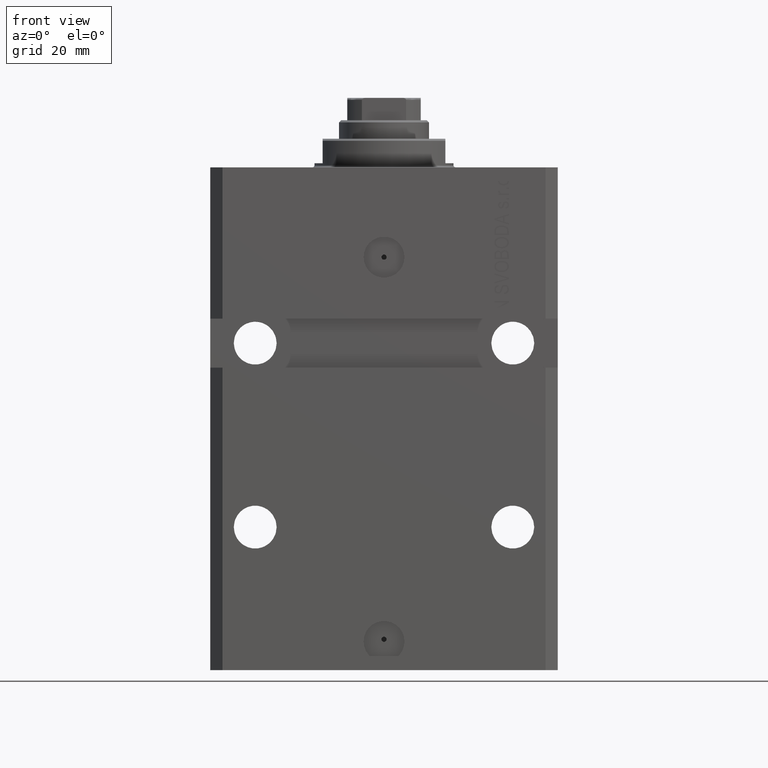
[diagram: clean part render]
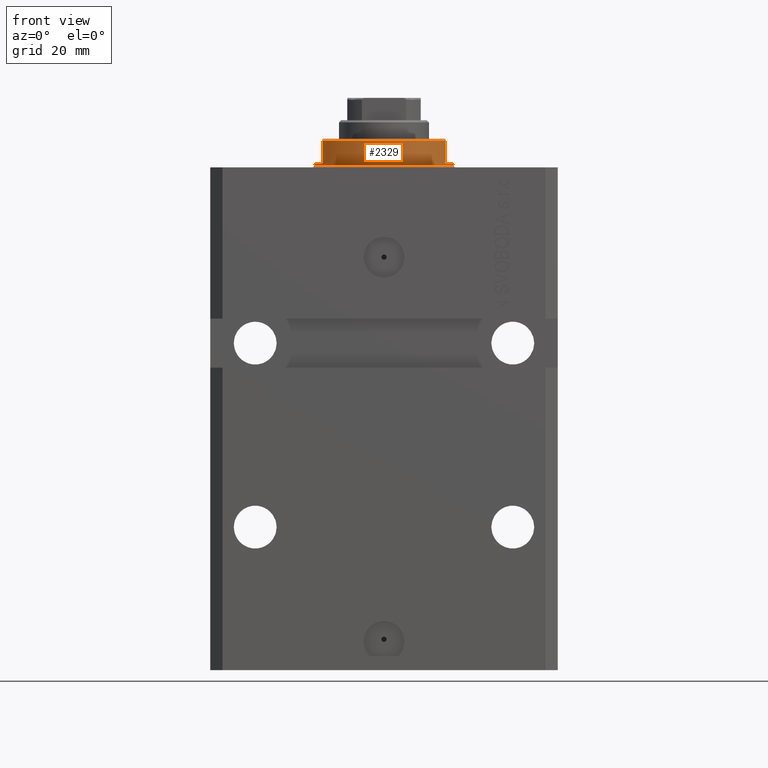
[diagram: same view with one face highlighted and labeled with its STEP entity id]
A machine part, front view. The second image highlights one B-rep face of the part: STEP entity #2329.
In plain terms, the highlighted cylindrical surface (partial cylindrical patch) has radius 17 mm, axis along (0, 0, -1).
Its self-contained STEP definition (entity closure, byte-faithful):
#260 = FACE_OUTER_BOUND ( 'NONE', #9491, .T. ) ;
#319 = EDGE_CURVE ( 'NONE', #7398, #27539, #11488, .T. ) ;
#559 = AXIS2_PLACEMENT_3D ( 'NONE', #21976, #14205, #33412 ) ;
#2329 = ADVANCED_FACE ( 'NONE', ( #260 ), #11448, .T. ) ;
#3823 = VERTEX_POINT ( 'NONE', #27311 ) ;
#4145 = CARTESIAN_POINT ( 'NONE',  ( 0.000000000000000000, 0.000000000000000000, -7.000000000000000000 ) ) ;
#4701 = EDGE_CURVE ( 'NONE', #7398, #17722, #18335, .T. ) ;
#4749 = ORIENTED_EDGE ( 'NONE', *, *, #41047, .F. ) ;
#7398 = VERTEX_POINT ( 'NONE', #14790 ) ;
#7901 = CARTESIAN_POINT ( 'NONE',  ( 17.00000000000000000, 0.000000000000000000, -0.4999999999999995559 ) ) ;
#8441 = CIRCLE ( 'NONE', #9199, 17.00000000000000000 ) ;
#8793 = LINE ( 'NONE', #46484, #19513 ) ;
#9199 = AXIS2_PLACEMENT_3D ( 'NONE', #34443, #12781, #23015 ) ;
#9491 = EDGE_LOOP ( 'NONE', ( #4749, #17702, #17759, #46613, #27384, #38736, #11511, #19768 ) ) ;
#9946 = EDGE_CURVE ( 'NONE', #12599, #25943, #8441, .T. ) ;
#11448 = CYLINDRICAL_SURFACE ( 'NONE', #41584, 17.00000000000000000 ) ;
#11488 = LINE ( 'NONE', #22434, #39970 ) ;
#11511 = ORIENTED_EDGE ( 'NONE', *, *, #319, .T. ) ;
#12599 = VERTEX_POINT ( 'NONE', #15156 ) ;
#12781 = DIRECTION ( 'NONE',  ( 0.000000000000000000, 0.000000000000000000, 1.000000000000000000 ) ) ;
#13104 = CARTESIAN_POINT ( 'NONE',  ( -17.00000000000000000, 2.081899558550500280E-15, -7.000000000000000000 ) ) ;
#13728 = LINE ( 'NONE', #25390, #35654 ) ;
#14205 = DIRECTION ( 'NONE',  ( 0.000000000000000000, 0.000000000000000000, -1.000000000000000000 ) ) ;
#14699 = DIRECTION ( 'NONE',  ( 0.000000000000000000, 0.000000000000000000, -1.000000000000000000 ) ) ;
#14790 = CARTESIAN_POINT ( 'NONE',  ( 17.00000000000000000, 0.000000000000000000, -1.000000000000000000 ) ) ;
#15114 = AXIS2_PLACEMENT_3D ( 'NONE', #33504, #44939, #26463 ) ;
#15156 = CARTESIAN_POINT ( 'NONE',  ( -15.00000000000000000, -8.000000000000001776, -6.500000000000014211 ) ) ;
#15298 = CARTESIAN_POINT ( 'NONE',  ( 14.99999999999999645, -8.000000000000003553, -1.000000000000000000 ) ) ;
#15522 = EDGE_CURVE ( 'NONE', #3823, #12599, #13728, .T. ) ;
#17702 = ORIENTED_EDGE ( 'NONE', *, *, #32054, .F. ) ;
#17722 = VERTEX_POINT ( 'NONE', #15298 ) ;
#17759 = ORIENTED_EDGE ( 'NONE', *, *, #15522, .T. ) ;
#18221 = CARTESIAN_POINT ( 'NONE',  ( -17.00000000000000000, 2.081899558550500280E-15, -1.000000000000000000 ) ) ;
#18335 = CIRCLE ( 'NONE', #29246, 17.00000000000000000 ) ;
#18985 = DIRECTION ( 'NONE',  ( 1.000000000000000000, 0.000000000000000000, 0.000000000000000000 ) ) ;
#19513 = VECTOR ( 'NONE', #27298, 1000.000000000000000 ) ;
#19768 = ORIENTED_EDGE ( 'NONE', *, *, #26022, .T. ) ;
#21946 = DIRECTION ( 'NONE',  ( -0.000000000000000000, -0.000000000000000000, 1.000000000000000000 ) ) ;
#21976 = CARTESIAN_POINT ( 'NONE',  ( 0.000000000000000000, 0.000000000000000000, -1.000000000000000000 ) ) ;
#22434 = CARTESIAN_POINT ( 'NONE',  ( 17.00000000000000000, 0.000000000000000000, -7.000000000000000000 ) ) ;
#23015 = DIRECTION ( 'NONE',  ( -1.000000000000000000, 0.000000000000000000, 0.000000000000000000 ) ) ;
#23568 = LINE ( 'NONE', #13104, #45837 ) ;
#25043 = VERTEX_POINT ( 'NONE', #45178 ) ;
#25390 = CARTESIAN_POINT ( 'NONE',  ( -15.00000000000000000, -8.000000000000001776, -7.000000000000000000 ) ) ;
#25943 = VERTEX_POINT ( 'NONE', #41530 ) ;
#26022 = EDGE_CURVE ( 'NONE', #27539, #25043, #38406, .T. ) ;
#26463 = DIRECTION ( 'NONE',  ( 1.000000000000000000, 0.000000000000000000, 0.000000000000000000 ) ) ;
#26989 = CIRCLE ( 'NONE', #559, 17.00000000000000000 ) ;
#27298 = DIRECTION ( 'NONE',  ( 0.000000000000000000, 0.000000000000000000, -1.000000000000000000 ) ) ;
#27311 = CARTESIAN_POINT ( 'NONE',  ( -14.99999999999999645, -8.000000000000003553, -1.000000000000000000 ) ) ;
#27384 = ORIENTED_EDGE ( 'NONE', *, *, #44559, .F. ) ;
#27539 = VERTEX_POINT ( 'NONE', #7901 ) ;
#29246 = AXIS2_PLACEMENT_3D ( 'NONE', #30557, #45146, #45863 ) ;
#30557 = CARTESIAN_POINT ( 'NONE',  ( 0.000000000000000000, 0.000000000000000000, -1.000000000000000000 ) ) ;
#32054 = EDGE_CURVE ( 'NONE', #3823, #40158, #26989, .T. ) ;
#33412 = DIRECTION ( 'NONE',  ( -1.000000000000000000, 0.000000000000000000, 0.000000000000000000 ) ) ;
#33504 = CARTESIAN_POINT ( 'NONE',  ( 0.000000000000000000, 0.000000000000000000, -0.4999999999999995559 ) ) ;
#34443 = CARTESIAN_POINT ( 'NONE',  ( 0.000000000000000000, 0.000000000000000000, -6.500000000000013323 ) ) ;
#35654 = VECTOR ( 'NONE', #14699, 1000.000000000000000 ) ;
#37472 = DIRECTION ( 'NONE',  ( -0.000000000000000000, -0.000000000000000000, 1.000000000000000000 ) ) ;
#38406 = CIRCLE ( 'NONE', #15114, 17.00000000000000000 ) ;
#38736 = ORIENTED_EDGE ( 'NONE', *, *, #4701, .F. ) ;
#39970 = VECTOR ( 'NONE', #21946, 1000.000000000000000 ) ;
#40158 = VERTEX_POINT ( 'NONE', #18221 ) ;
#41047 = EDGE_CURVE ( 'NONE', #40158, #25043, #23568, .T. ) ;
#41530 = CARTESIAN_POINT ( 'NONE',  ( 15.00000000000000000, -8.000000000000001776, -6.500000000000013323 ) ) ;
#41584 = AXIS2_PLACEMENT_3D ( 'NONE', #4145, #37472, #18985 ) ;
#42768 = DIRECTION ( 'NONE',  ( -0.000000000000000000, -0.000000000000000000, 1.000000000000000000 ) ) ;
#44559 = EDGE_CURVE ( 'NONE', #17722, #25943, #8793, .T. ) ;
#44939 = DIRECTION ( 'NONE',  ( -0.000000000000000000, -0.000000000000000000, -1.000000000000000000 ) ) ;
#45146 = DIRECTION ( 'NONE',  ( 0.000000000000000000, 0.000000000000000000, -1.000000000000000000 ) ) ;
#45178 = CARTESIAN_POINT ( 'NONE',  ( -17.00000000000000000, 2.081899558550500280E-15, -0.4999999999999995559 ) ) ;
#45837 = VECTOR ( 'NONE', #42768, 1000.000000000000000 ) ;
#45863 = DIRECTION ( 'NONE',  ( -1.000000000000000000, 0.000000000000000000, 0.000000000000000000 ) ) ;
#46484 = CARTESIAN_POINT ( 'NONE',  ( 15.00000000000000000, -8.000000000000001776, -7.000000000000000000 ) ) ;
#46613 = ORIENTED_EDGE ( 'NONE', *, *, #9946, .T. ) ;